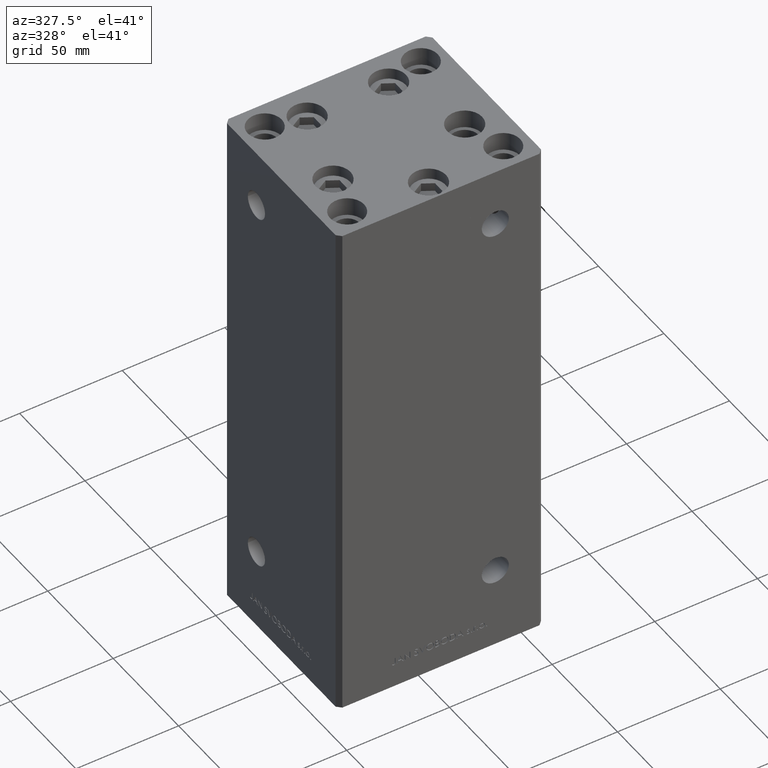
[diagram: clean part render]
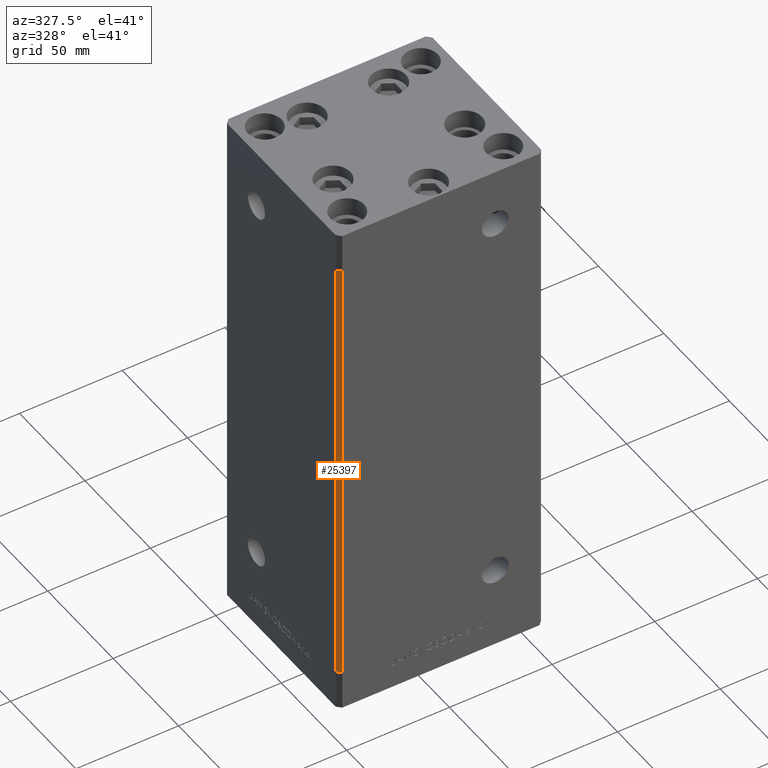
[diagram: same view with one face highlighted and labeled with its STEP entity id]
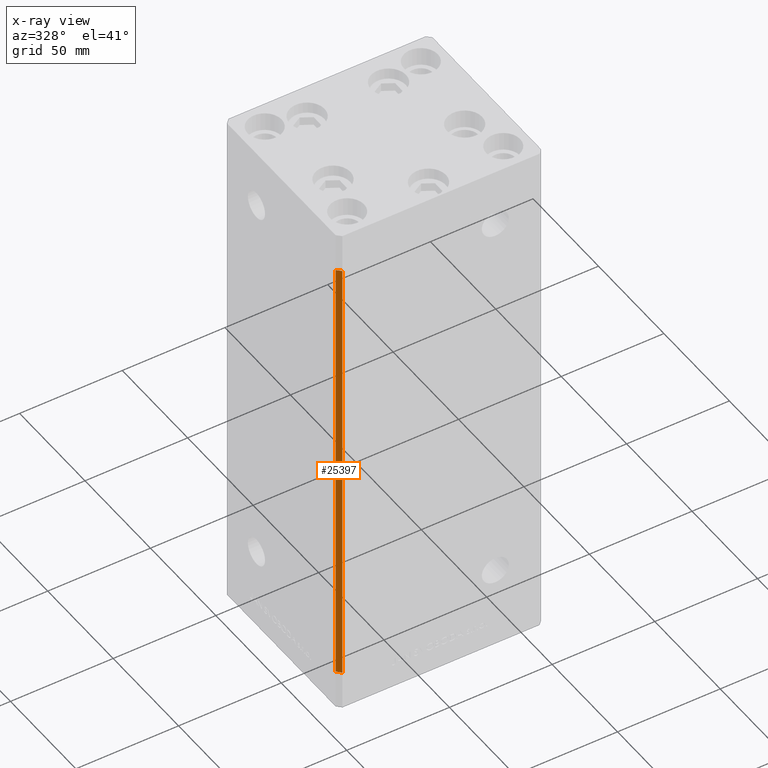
[diagram: x-ray of the same camera — body ghosted, the highlighted face saturated]
A machine part, auxiliary view. The second image highlights one B-rep face of the part: STEP entity #25397.
The next image is the same camera in x-ray: the body ghosted, the highlighted face saturated — about 0% of this face is hidden behind the body in this view.
In plain terms, the highlighted planar face has unit normal (0.7071, 0.7071, 0).
Its self-contained STEP definition (entity closure, byte-faithful):
#4773 = EDGE_CURVE ( 'NONE', #34386, #8185, #10298, .T. ) ;
#5255 = CARTESIAN_POINT ( 'NONE',  ( -49.99999999999998579, -41.49999999999999289, 0.000000000000000000 ) ) ;
#8099 = AXIS2_PLACEMENT_3D ( 'NONE', #9022, #17615, #44245 ) ;
#8185 = VERTEX_POINT ( 'NONE', #23460 ) ;
#8715 = DIRECTION ( 'NONE',  ( -0.000000000000000000, -0.000000000000000000, -1.000000000000000000 ) ) ;
#9022 = CARTESIAN_POINT ( 'NONE',  ( -49.99999999999998579, -41.49999999999999289, 218.5000000000000000 ) ) ;
#9033 = EDGE_CURVE ( 'NONE', #28555, #8185, #39791, .T. ) ;
#10298 = LINE ( 'NONE', #42200, #23578 ) ;
#11736 = LINE ( 'NONE', #26947, #17200 ) ;
#11940 = DIRECTION ( 'NONE',  ( 0.7071067811865474617, -0.7071067811865474617, 0.000000000000000000 ) ) ;
#16946 = ORIENTED_EDGE ( 'NONE', *, *, #4773, .F. ) ;
#17200 = VECTOR ( 'NONE', #38845, 1000.000000000000114 ) ;
#17615 = DIRECTION ( 'NONE',  ( 0.7071067811865475727, 0.7071067811865475727, -0.000000000000000000 ) ) ;
#23460 = CARTESIAN_POINT ( 'NONE',  ( -47.99999999999998579, -43.50000000000000000, 0.000000000000000000 ) ) ;
#23578 = VECTOR ( 'NONE', #45758, 1000.000000000000000 ) ;
#25397 = ADVANCED_FACE ( 'NONE', ( #43739 ), #32823, .F. ) ;
#26942 = VECTOR ( 'NONE', #11940, 1000.000000000000114 ) ;
#26947 = CARTESIAN_POINT ( 'NONE',  ( -49.99999999999998579, -41.49999999999999289, 218.5000000000000000 ) ) ;
#27971 = LINE ( 'NONE', #46975, #30435 ) ;
#28217 = ORIENTED_EDGE ( 'NONE', *, *, #43523, .T. ) ;
#28555 = VERTEX_POINT ( 'NONE', #5255 ) ;
#30435 = VECTOR ( 'NONE', #8715, 1000.000000000000000 ) ;
#32199 = CARTESIAN_POINT ( 'NONE',  ( -49.99999999999998579, -41.49999999999999289, 0.000000000000000000 ) ) ;
#32823 = PLANE ( 'NONE',  #8099 ) ;
#34386 = VERTEX_POINT ( 'NONE', #39628 ) ;
#35567 = EDGE_CURVE ( 'NONE', #48303, #34386, #11736, .T. ) ;
#38828 = CARTESIAN_POINT ( 'NONE',  ( -49.99999999999998579, -41.49999999999999289, 218.5000000000000000 ) ) ;
#38845 = DIRECTION ( 'NONE',  ( 0.7071067811865474617, -0.7071067811865474617, 0.000000000000000000 ) ) ;
#39628 = CARTESIAN_POINT ( 'NONE',  ( -47.99999999999998579, -43.50000000000000000, 218.5000000000000000 ) ) ;
#39791 = LINE ( 'NONE', #32199, #26942 ) ;
#40943 = ORIENTED_EDGE ( 'NONE', *, *, #35567, .F. ) ;
#42200 = CARTESIAN_POINT ( 'NONE',  ( -47.99999999999998579, -43.50000000000000000, 218.5000000000000000 ) ) ;
#43523 = EDGE_CURVE ( 'NONE', #48303, #28555, #27971, .T. ) ;
#43739 = FACE_OUTER_BOUND ( 'NONE', #44653, .T. ) ;
#44245 = DIRECTION ( 'NONE',  ( -0.7071067811865474617, 0.7071067811865474617, 0.000000000000000000 ) ) ;
#44653 = EDGE_LOOP ( 'NONE', ( #44969, #16946, #40943, #28217 ) ) ;
#44969 = ORIENTED_EDGE ( 'NONE', *, *, #9033, .T. ) ;
#45758 = DIRECTION ( 'NONE',  ( -0.000000000000000000, -0.000000000000000000, -1.000000000000000000 ) ) ;
#46975 = CARTESIAN_POINT ( 'NONE',  ( -49.99999999999998579, -41.49999999999999289, 218.5000000000000000 ) ) ;
#48303 = VERTEX_POINT ( 'NONE', #38828 ) ;